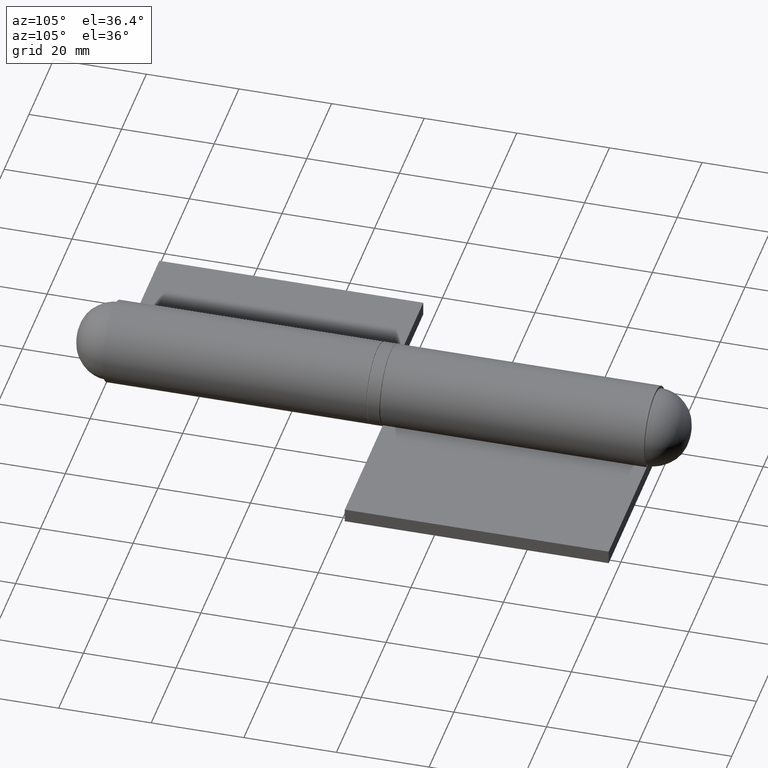
[diagram: clean part render]
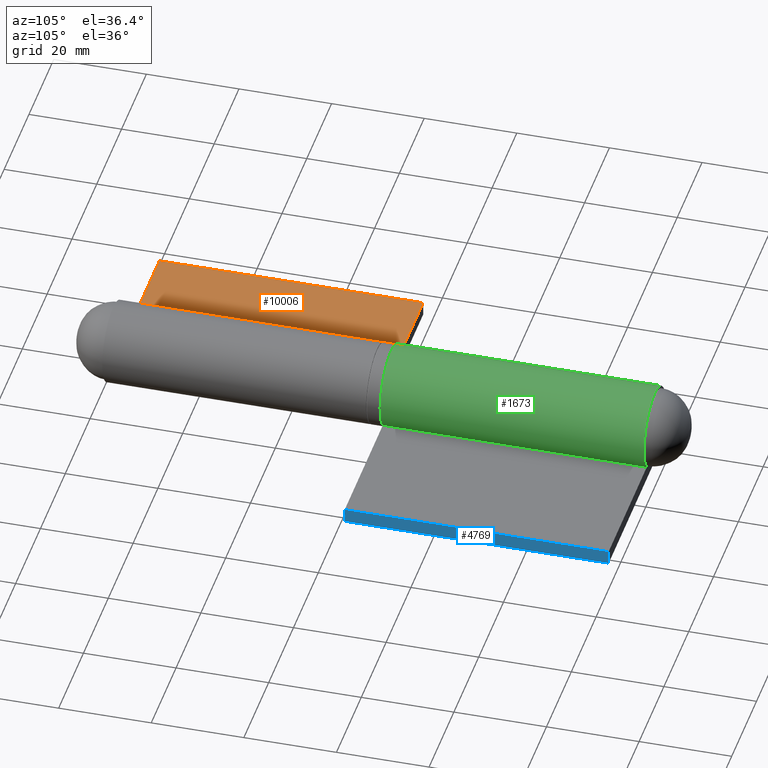
[diagram: same view with three faces highlighted in distinct colors, each labeled with its STEP entity id]
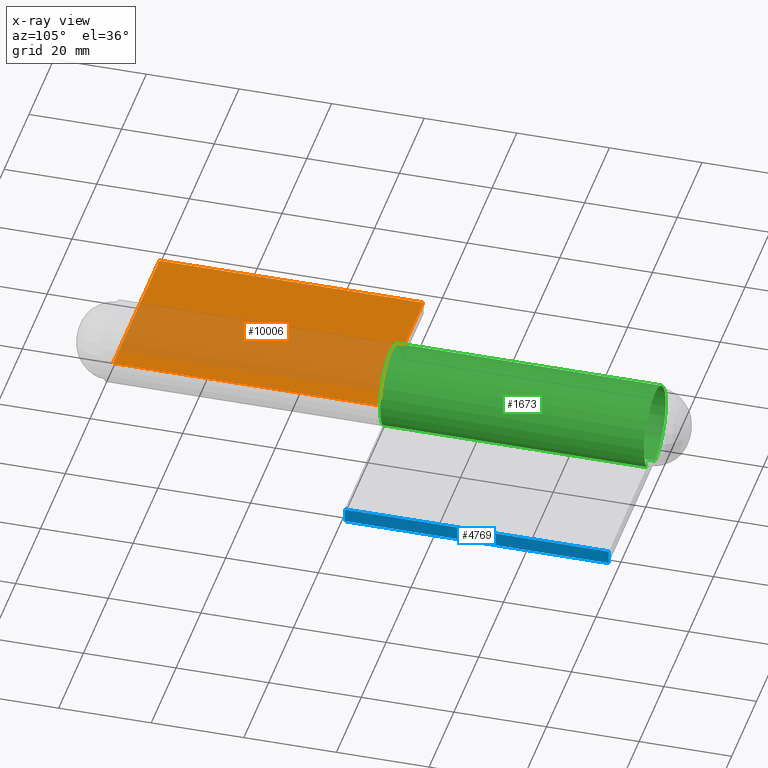
[diagram: x-ray of the same camera — body ghosted, the three highlighted faces saturated]
A machine part, auxiliary view with three faces highlighted in distinct colors.
The next image is the same camera in x-ray (body ghosted, the three faces saturated) — at least one of them is partly hidden behind the body in this view.
Their STEP definitions:

[orange] entity #10006 — the highlighted planar face has unit normal (-0, 0, -1).
#19 = CARTESIAN_POINT ( 'NONE',  ( 37.25000000000000000, -28.50000000000000000, -5.750000000000000888 ) ) ;
#163 = ORIENTED_EDGE ( 'NONE', *, *, #11133, .T. ) ;
#240 = CARTESIAN_POINT ( 'NONE',  ( 0.000000000000000000, -28.50000000000000000, -5.750000000000000888 ) ) ;
#1024 = EDGE_CURVE ( 'NONE', #1652, #1442, #8584, .T. ) ;
#1032 = VERTEX_POINT ( 'NONE', #1567 ) ;
#1442 = VERTEX_POINT ( 'NONE', #19 ) ;
#1567 = CARTESIAN_POINT ( 'NONE',  ( 0.000000000000000000, 28.50000000000000000, -5.750000000000000888 ) ) ;
#1652 = VERTEX_POINT ( 'NONE', #10085 ) ;
#1766 = VERTEX_POINT ( 'NONE', #7109 ) ;
#2229 = ORIENTED_EDGE ( 'NONE', *, *, #2873, .F. ) ;
#2524 = LINE ( 'NONE', #9857, #7551 ) ;
#2671 = EDGE_LOOP ( 'NONE', ( #163, #10347, #2229, #7172, #11239 ) ) ;
#2770 = EDGE_CURVE ( 'NONE', #1032, #8474, #2524, .T. ) ;
#2873 = EDGE_CURVE ( 'NONE', #1766, #1652, #6098, .T. ) ;
#3017 = EDGE_CURVE ( 'NONE', #1032, #1766, #8840, .T. ) ;
#3258 = AXIS2_PLACEMENT_3D ( 'NONE', #5274, #11871, #6335 ) ;
#4275 = DIRECTION ( 'NONE',  ( -0.000000000000000000, -1.000000000000000000, -0.000000000000000000 ) ) ;
#4373 = CARTESIAN_POINT ( 'NONE',  ( 0.000000000000000000, -28.50000000000000000, -5.750000000000000888 ) ) ;
#5274 = CARTESIAN_POINT ( 'NONE',  ( 0.000000000000000000, 28.50000000000000000, -5.750000000000000888 ) ) ;
#6098 = LINE ( 'NONE', #8785, #10455 ) ;
#6307 = DIRECTION ( 'NONE',  ( 1.000000000000000000, -0.000000000000000000, 0.000000000000000000 ) ) ;
#6335 = DIRECTION ( 'NONE',  ( -1.000000000000000000, 0.000000000000000000, -0.000000000000000000 ) ) ;
#7109 = CARTESIAN_POINT ( 'NONE',  ( 5.916079783099616130, 28.50000000000000000, -5.750000000000000888 ) ) ;
#7112 = VECTOR ( 'NONE', #7806, 1000.000000000000000 ) ;
#7172 = ORIENTED_EDGE ( 'NONE', *, *, #3017, .F. ) ;
#7551 = VECTOR ( 'NONE', #9687, 1000.000000000000000 ) ;
#7657 = FACE_OUTER_BOUND ( 'NONE', #2671, .T. ) ;
#7806 = DIRECTION ( 'NONE',  ( 1.000000000000000000, -0.000000000000000000, 0.000000000000000000 ) ) ;
#7922 = CARTESIAN_POINT ( 'NONE',  ( 0.000000000000000000, 28.50000000000000000, -5.750000000000000888 ) ) ;
#8474 = VERTEX_POINT ( 'NONE', #240 ) ;
#8584 = LINE ( 'NONE', #8870, #11815 ) ;
#8785 = CARTESIAN_POINT ( 'NONE',  ( 0.000000000000000000, 28.50000000000000000, -5.750000000000000888 ) ) ;
#8840 = LINE ( 'NONE', #7922, #7112 ) ;
#8870 = CARTESIAN_POINT ( 'NONE',  ( 37.25000000000000000, 28.50000000000000000, -5.750000000000000888 ) ) ;
#9687 = DIRECTION ( 'NONE',  ( -0.000000000000000000, -1.000000000000000000, -0.000000000000000000 ) ) ;
#9857 = CARTESIAN_POINT ( 'NONE',  ( 0.000000000000000000, 28.50000000000000000, -5.750000000000000888 ) ) ;
#9962 = VECTOR ( 'NONE', #6307, 1000.000000000000000 ) ;
#10006 = ADVANCED_FACE ( 'NONE', ( #7657 ), #11005, .F. ) ;
#10085 = CARTESIAN_POINT ( 'NONE',  ( 37.25000000000000000, 28.50000000000000000, -5.750000000000000888 ) ) ;
#10119 = LINE ( 'NONE', #4373, #9962 ) ;
#10347 = ORIENTED_EDGE ( 'NONE', *, *, #1024, .F. ) ;
#10455 = VECTOR ( 'NONE', #10714, 1000.000000000000000 ) ;
#10714 = DIRECTION ( 'NONE',  ( 1.000000000000000000, -0.000000000000000000, 0.000000000000000000 ) ) ;
#11005 = PLANE ( 'NONE',  #3258 ) ;
#11133 = EDGE_CURVE ( 'NONE', #8474, #1442, #10119, .T. ) ;
#11239 = ORIENTED_EDGE ( 'NONE', *, *, #2770, .T. ) ;
#11815 = VECTOR ( 'NONE', #4275, 1000.000000000000000 ) ;
#11871 = DIRECTION ( 'NONE',  ( 0.000000000000000000, 0.000000000000000000, -1.000000000000000000 ) ) ;

[blue] entity #4769 — the highlighted planar face has unit normal (-1, 0, 0).
#324 = LINE ( 'NONE', #9897, #3346 ) ;
#450 = LINE ( 'NONE', #7348, #1894 ) ;
#898 = VECTOR ( 'NONE', #8799, 1000.000000000000000 ) ;
#1419 = DIRECTION ( 'NONE',  ( 0.000000000000000000, 0.000000000000000000, 1.000000000000000000 ) ) ;
#1551 = VERTEX_POINT ( 'NONE', #1834 ) ;
#1834 = CARTESIAN_POINT ( 'NONE',  ( 37.25000000000000000, 28.50000000000000000, -8.750000000000000000 ) ) ;
#1894 = VECTOR ( 'NONE', #5315, 1000.000000000000000 ) ;
#3102 = PLANE ( 'NONE',  #4601 ) ;
#3346 = VECTOR ( 'NONE', #4318, 1000.000000000000000 ) ;
#3347 = LINE ( 'NONE', #8724, #898 ) ;
#4008 = CARTESIAN_POINT ( 'NONE',  ( 37.25000000000000000, -28.50000000000000000, -8.750000000000000000 ) ) ;
#4318 = DIRECTION ( 'NONE',  ( 0.000000000000000000, 0.000000000000000000, -1.000000000000000000 ) ) ;
#4505 = CARTESIAN_POINT ( 'NONE',  ( 37.25000000000000000, 28.50000000000000000, -5.750000000000000888 ) ) ;
#4601 = AXIS2_PLACEMENT_3D ( 'NONE', #10485, #5854, #1419 ) ;
#4769 = ADVANCED_FACE ( 'NONE', ( #9698 ), #3102, .F. ) ;
#5171 = ORIENTED_EDGE ( 'NONE', *, *, #9896, .T. ) ;
#5315 = DIRECTION ( 'NONE',  ( -0.000000000000000000, -1.000000000000000000, -0.000000000000000000 ) ) ;
#5854 = DIRECTION ( 'NONE',  ( -1.000000000000000000, 0.000000000000000000, 0.000000000000000000 ) ) ;
#6152 = CARTESIAN_POINT ( 'NONE',  ( 37.25000000000000000, -28.50000000000000000, -5.750000000000000888 ) ) ;
#6394 = VECTOR ( 'NONE', #8700, 1000.000000000000000 ) ;
#6720 = VERTEX_POINT ( 'NONE', #4008 ) ;
#6775 = ORIENTED_EDGE ( 'NONE', *, *, #7913, .F. ) ;
#7214 = EDGE_CURVE ( 'NONE', #1551, #6720, #3347, .T. ) ;
#7348 = CARTESIAN_POINT ( 'NONE',  ( 37.25000000000000000, 28.50000000000000000, -5.750000000000000888 ) ) ;
#7777 = VERTEX_POINT ( 'NONE', #6152 ) ;
#7913 = EDGE_CURVE ( 'NONE', #10809, #1551, #9561, .T. ) ;
#8035 = ORIENTED_EDGE ( 'NONE', *, *, #11550, .T. ) ;
#8700 = DIRECTION ( 'NONE',  ( 0.000000000000000000, 0.000000000000000000, -1.000000000000000000 ) ) ;
#8724 = CARTESIAN_POINT ( 'NONE',  ( 37.25000000000000000, 28.50000000000000000, -8.750000000000000000 ) ) ;
#8745 = EDGE_LOOP ( 'NONE', ( #5171, #11452, #6775, #8035 ) ) ;
#8799 = DIRECTION ( 'NONE',  ( -0.000000000000000000, -1.000000000000000000, -0.000000000000000000 ) ) ;
#9561 = LINE ( 'NONE', #11236, #6394 ) ;
#9698 = FACE_OUTER_BOUND ( 'NONE', #8745, .T. ) ;
#9896 = EDGE_CURVE ( 'NONE', #7777, #6720, #324, .T. ) ;
#9897 = CARTESIAN_POINT ( 'NONE',  ( 37.25000000000000000, -28.50000000000000000, 0.000000000000000000 ) ) ;
#10485 = CARTESIAN_POINT ( 'NONE',  ( 37.25000000000000000, 28.50000000000000000, 0.000000000000000000 ) ) ;
#10809 = VERTEX_POINT ( 'NONE', #4505 ) ;
#11236 = CARTESIAN_POINT ( 'NONE',  ( 37.25000000000000000, 28.50000000000000000, 0.000000000000000000 ) ) ;
#11452 = ORIENTED_EDGE ( 'NONE', *, *, #7214, .F. ) ;
#11550 = EDGE_CURVE ( 'NONE', #10809, #7777, #450, .T. ) ;

[green] entity #1673 — the highlighted cylindrical surface (partial cylindrical patch) has radius 8.75 mm, axis along (-0, -1, -0).
#690 = EDGE_CURVE ( 'NONE', #4927, #9259, #11954, .T. ) ;
#781 = DIRECTION ( 'NONE',  ( -0.000000000000000000, -1.000000000000000000, -0.000000000000000000 ) ) ;
#1092 = DIRECTION ( 'NONE',  ( -0.000000000000000000, -1.000000000000000000, -0.000000000000000000 ) ) ;
#1143 = CARTESIAN_POINT ( 'NONE',  ( 0.000000000000000000, -28.50000000000000000, 0.000000000000000000 ) ) ;
#1673 = ADVANCED_FACE ( 'NONE', ( #2551 ), #7282, .T. ) ;
#2309 = DIRECTION ( 'NONE',  ( -0.000000000000000000, -1.000000000000000000, -0.000000000000000000 ) ) ;
#2551 = FACE_OUTER_BOUND ( 'NONE', #3506, .T. ) ;
#2618 = CARTESIAN_POINT ( 'NONE',  ( 6.681317235396025289, -28.50000000000000000, -5.650000000000000355 ) ) ;
#2761 = ORIENTED_EDGE ( 'NONE', *, *, #10883, .T. ) ;
#3302 = CARTESIAN_POINT ( 'NONE',  ( 6.681317235396025289, 28.50000000000000000, -5.650000000000000355 ) ) ;
#3472 = LINE ( 'NONE', #10491, #9843 ) ;
#3506 = EDGE_LOOP ( 'NONE', ( #2761, #9283, #9355, #8210 ) ) ;
#4107 = VECTOR ( 'NONE', #1092, 1000.000000000000000 ) ;
#4228 = CARTESIAN_POINT ( 'NONE',  ( 0.000000000000000000, 28.50000000000000000, 0.000000000000000000 ) ) ;
#4613 = CARTESIAN_POINT ( 'NONE',  ( 0.000000000000000000, -28.50000000000000000, -8.750000000000000000 ) ) ;
#4927 = VERTEX_POINT ( 'NONE', #8525 ) ;
#5410 = CARTESIAN_POINT ( 'NONE',  ( 0.000000000000000000, 28.50000000000000000, 0.000000000000000000 ) ) ;
#5533 = VERTEX_POINT ( 'NONE', #3302 ) ;
#6448 = AXIS2_PLACEMENT_3D ( 'NONE', #5410, #781, #8134 ) ;
#6706 = EDGE_CURVE ( 'NONE', #5533, #7402, #3472, .T. ) ;
#7282 = CYLINDRICAL_SURFACE ( 'NONE', #6448, 8.750000000000000000 ) ;
#7402 = VERTEX_POINT ( 'NONE', #2618 ) ;
#8113 = AXIS2_PLACEMENT_3D ( 'NONE', #1143, #11356, #8496 ) ;
#8134 = DIRECTION ( 'NONE',  ( 0.000000000000000000, 0.000000000000000000, -1.000000000000000000 ) ) ;
#8210 = ORIENTED_EDGE ( 'NONE', *, *, #690, .T. ) ;
#8496 = DIRECTION ( 'NONE',  ( 0.000000000000000000, 0.000000000000000000, 1.000000000000000000 ) ) ;
#8525 = CARTESIAN_POINT ( 'NONE',  ( 0.000000000000000000, 28.50000000000000000, -8.750000000000000000 ) ) ;
#8660 = CIRCLE ( 'NONE', #10056, 8.750000000000000000 ) ;
#9259 = VERTEX_POINT ( 'NONE', #4613 ) ;
#9283 = ORIENTED_EDGE ( 'NONE', *, *, #6706, .F. ) ;
#9324 = CARTESIAN_POINT ( 'NONE',  ( 0.000000000000000000, 28.50000000000000000, -8.750000000000000000 ) ) ;
#9355 = ORIENTED_EDGE ( 'NONE', *, *, #10644, .F. ) ;
#9843 = VECTOR ( 'NONE', #2309, 1000.000000000000000 ) ;
#10056 = AXIS2_PLACEMENT_3D ( 'NONE', #4228, #10706, #11654 ) ;
#10491 = CARTESIAN_POINT ( 'NONE',  ( 6.681317235396025289, 28.50000000000000000, -5.650000000000000355 ) ) ;
#10644 = EDGE_CURVE ( 'NONE', #4927, #5533, #8660, .T. ) ;
#10706 = DIRECTION ( 'NONE',  ( 0.000000000000000000, 1.000000000000000000, -0.000000000000000000 ) ) ;
#10883 = EDGE_CURVE ( 'NONE', #9259, #7402, #11590, .T. ) ;
#11356 = DIRECTION ( 'NONE',  ( 0.000000000000000000, 1.000000000000000000, -0.000000000000000000 ) ) ;
#11590 = CIRCLE ( 'NONE', #8113, 8.750000000000000000 ) ;
#11654 = DIRECTION ( 'NONE',  ( 0.000000000000000000, 0.000000000000000000, 1.000000000000000000 ) ) ;
#11954 = LINE ( 'NONE', #9324, #4107 ) ;